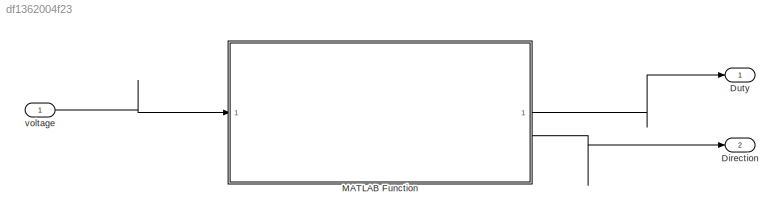
MODEL slx_df1362004f23
KIND model
CONFIG AbsTol = auto
CONFIG EnableMultiTasking = off
CONFIG FixedStep = auto
CONFIG MaxStep = auto
CONFIG MinStep = auto
CONFIG RelTol = 1e-3
CONFIG SampleTimeConstraint = Unconstrained
CONFIG SolverName = VariableStepAuto
CONFIG StartTime = 0.0
CONFIG StopTime = 10.0
BLOCK [Outport] Direction
  Port = 2
BLOCK [Outport] Duty
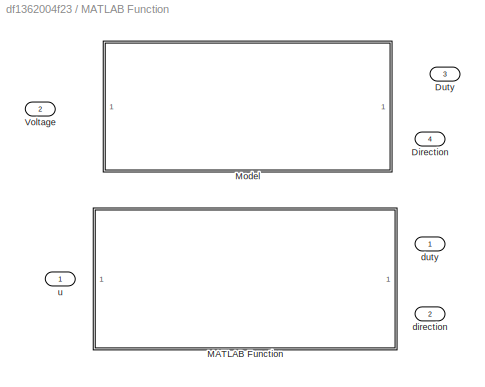
BLOCK [SubSystem] MATLAB Function
  LabelModeActiveChoice = Choice_1
  Variant = on
  VariantControl = Choice
  VariantControlMode = label
BLOCK [Outport] MATLAB Function/Direction
  Port = 4
BLOCK [Outport] MATLAB Function/Duty
  Port = 3
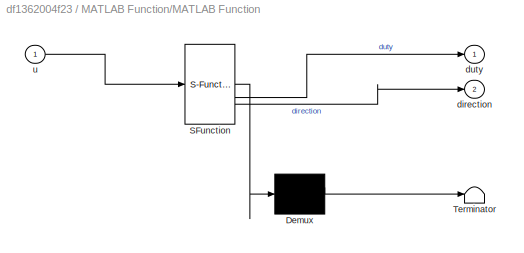
BLOCK [SubSystem] MATLAB Function/MATLAB Function
  ErrorFcn = Stateflow.Translate.translate
  LibrarySourceBlock = simulink/User-Defined\nFunctions/MATLAB Function
  PermitHierarchicalResolution = ExplicitOnly
  SFBlockType = MATLAB Function
  TreatAsAtomicUnit = on
  VariantControl = Choice
BLOCK [Demux] MATLAB Function/MATLAB Function/ Demux 
  Outputs = 1
BLOCK [S-Function] MATLAB Function/MATLAB Function/ SFunction 
  EnableBusSupport = on
  FunctionName = sf_sfun
  PortCounts = [1 3]
  SFcnIsStateOwnerBlock = off
  SFunctionDeploymentMode = off
  Tag = Stateflow S-Function 2
BLOCK [Terminator] MATLAB Function/MATLAB Function/ Terminator 
BLOCK [Outport] MATLAB Function/MATLAB Function/direction
  Port = 2
BLOCK [Outport] MATLAB Function/MATLAB Function/duty
BLOCK [Inport] MATLAB Function/MATLAB Function/u
BLOCK [ModelReference] MATLAB Function/Model
  ModelNameDialog = u2dd_sl.slx
  ModelReferenceVersion = 1.1
  VariantControl = Choice_1
BLOCK [Inport] MATLAB Function/Voltage
  Port = 2
BLOCK [Outport] MATLAB Function/direction
  Port = 2
BLOCK [Outport] MATLAB Function/duty
BLOCK [Inport] MATLAB Function/u
BLOCK [Inport] voltage
LINE MATLAB Function:1 -> Duty:1
LINE MATLAB Function:2 -> Direction:1
LINE voltage:1 -> MATLAB Function:1
CHART MATLAB Function/MATLAB Function states=1 transitions=1
  STATE_LABEL 'eML_blk_kernel()'
  STATE_LABEL 'SCRIPT:\nfunction [duty, direction] = u2dd(u)\n\n% direção do bit e conifguração do duty = abs(u)\nif u >= 0\n    duty = u;\n    direction = 1;\nelse\n    duty = -u;\n    direction = -1;\nend\n\n% Saturação do duty cycle a 1\nif duty > 1\n    duty = 1;\nend\n'
CHART  states=0 transitions=0
